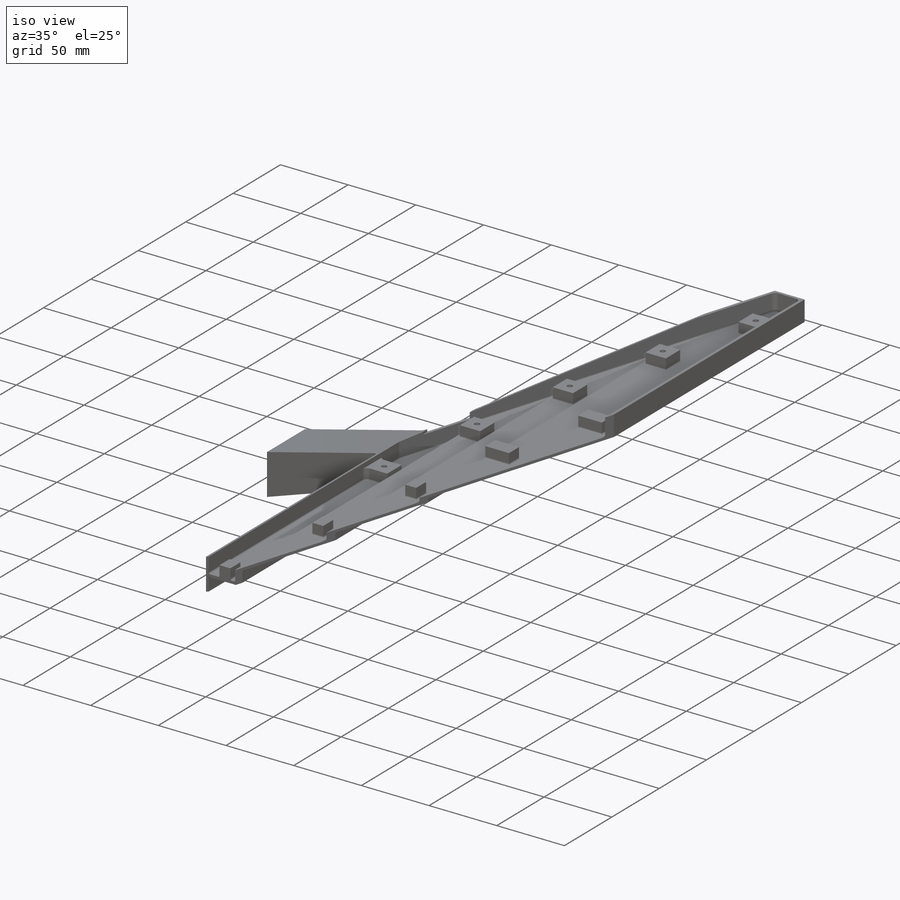
[diagram: iso view]
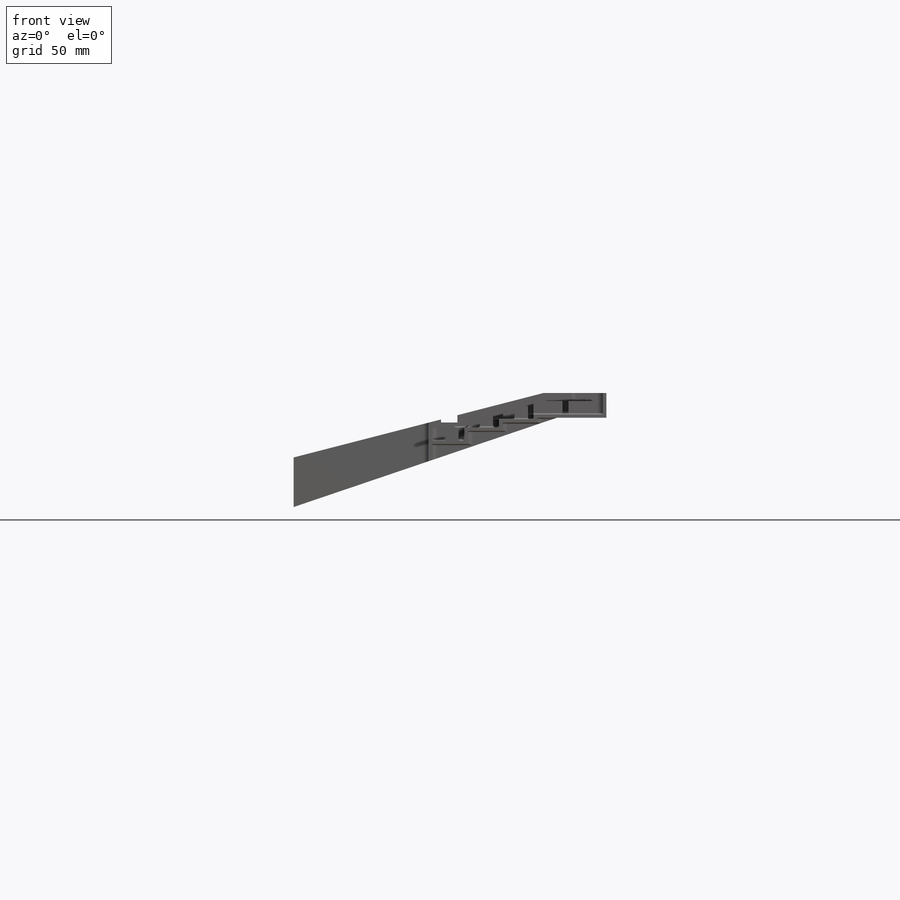
[diagram: front view]
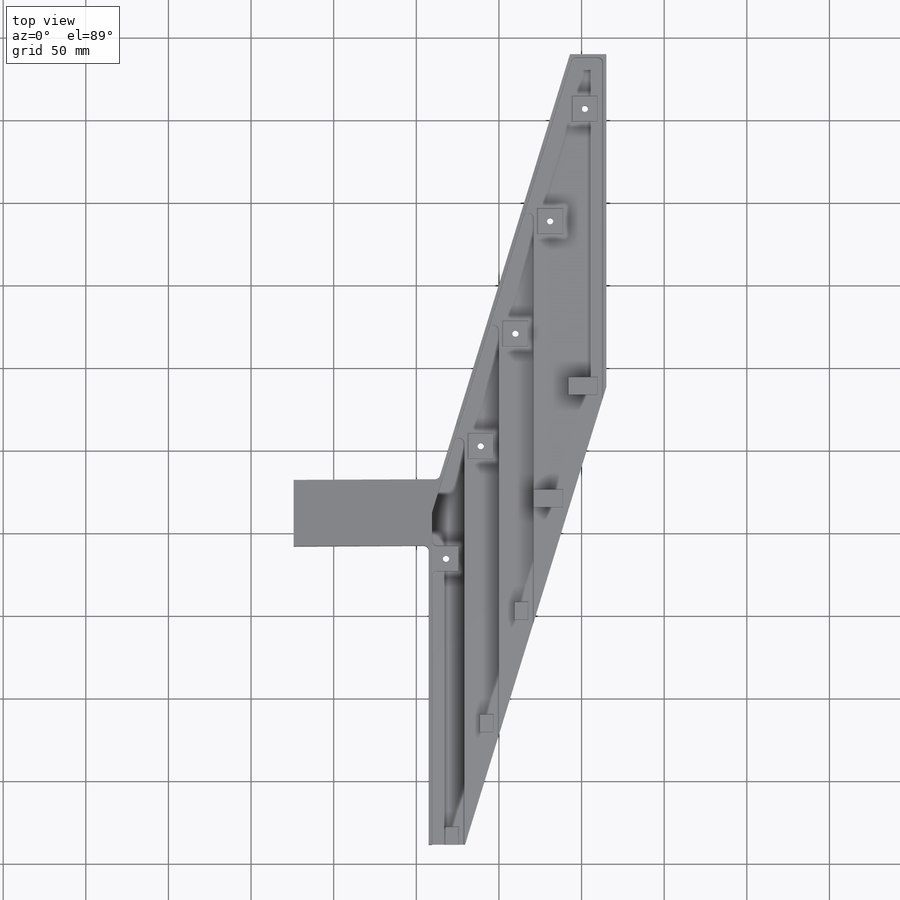
[diagram: top view]
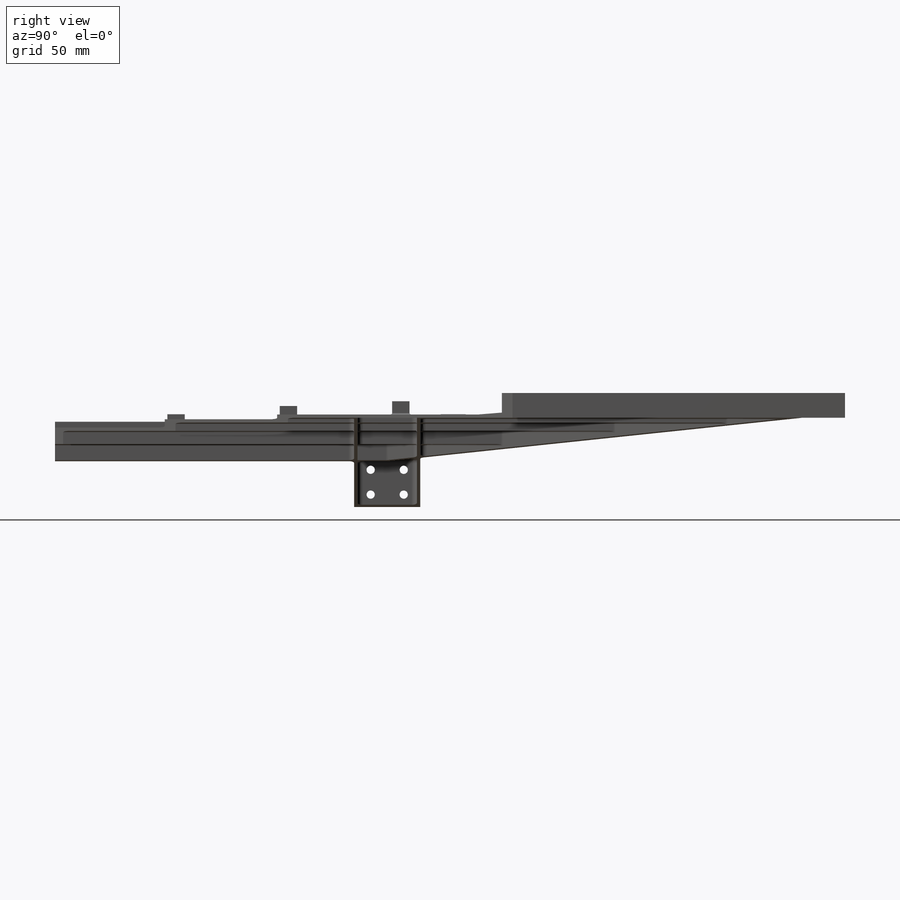
[diagram: right view]
SOLIDWORKS PART (.sldprt)
format: sldprt  version: not decoded by parser v0  size: 1,309,696 bytes
history: native  units: mm
features: sketch x28, extrude x11, fillet x9, cut_extrude x6, thread x5, hole x2, material x1 (+11 scaffold rows collapsed)
feature tree (73):
  scaffold x11  (default folders/planes/origin — collapsed)
  material  "6061-T6 (SS)"
  sketch  "Sketch36"  dims[D1=374.0mm D2=68.0mm]
  sketch  "Sketch2"  dims[c1.D1=417.7mm c1.D5=432.7mm c1.D8=117.602mm c1.D14=117.602mm c1.D12=430.4mm c1.D2=114.3mm c1.D4=20.6mm c2.D5=3.175mm c2.D6=10.3mm c2.D4=95.0mm c3.D6=110.0mm c3.D4=95.0mm c3.D7=62.1mm c3.D9=42.0mm c3.D10=21.0mm c3.D11=2.0mm c3.D12=2.0mm c4.D11=2.0mm c4.D13=2.0mm c4.D14=12.0mm c5.D11=15.0mm c5.D13=116.3mm c5.D14=13.8mm c5.D15=23.5mm c5.D3=2.0mm c5.D1=478.0mm c5.D5=2.0mm c5.D6=1.0mm c5.D7=5.0mm]
  sketch  "Sketch3"  dims[D1=22.0mm D2=21.0mm D3=68.0mm D4=478.0mm]
  cut_extrude  "Cut-Extrude2"  [1 undecoded]
  sketch  "Sketch11"  dims[D1=190.0mm D5=2.0mm D6=1.0mm D7=5.0mm]
  sketch  "Sketch12"  dims[D1=40.0mm D2=124.0mm D3=277.0mm D5=2.0mm D6=1.0mm D7=5.0mm]
  sketch  "Sketch13"  dims[D5=2.0mm D6=1.0mm D7=5.0mm]
  sketch  "Sketch4"
  cut_extrude  "Cut-Extrude3"  [1 undecoded]
  sketch  "Sketch14"  dims[c1.D1=13.0mm c1.D2=4.0mm c1.D3=38.0mm c2.D2=83.0mm]
  cut_extrude  "Cut-Extrude4"  [1 undecoded]
  sketch  "Sketch15"  dims[c1.D1=29.0mm c1.D2=30.0mm c2.D1=30.0mm]
  cut_extrude  "Cut-Extrude5"  [1 undecoded]
  sketch  "Sketch16"
  extrude  "Boss-Extrude1"  Depth=2mm
  sketch  "Sketch17"  dims[D1=3.5mm D2=15.0mm D3=23.5mm]
  extrude  "Boss-Extrude2"  Depth=8mm
  sketch  "knob locator"  dims[D1=68.0mm D2=21.0mm D3=170.0mm]
  sketch  "Sketch19"  dims[D1=15.0mm]
  extrude  "Boss-Extrude3"  [1 undecoded]
  sketch  "Sketch20"
  extrude  "Boss-Extrude4"  Depth=8mm
  sketch  "Sketch21"
  extrude  "Boss-Extrude5"  Depth=8mm
  sketch  "Sketch22"
  extrude  "Boss-Extrude6"  Depth=8mm
  sketch  "Sketch23"
  cut_extrude  "Cut-Extrude6"  [1 undecoded]
  sketch  "Sketch25"  dims[D1=4.0mm]
  extrude  "Boss-Extrude7"  [1 undecoded]
  sketch  "Sketch29"  dims[D1=10.5mm D2=8.0mm D3=170.0mm]
  extrude  "Boss-Extrude8"  Depth=8mm
  sketch  "Sketch30"  dims[D1=8.0mm]
  extrude  "Boss-Extrude9"  Depth=8mm
  sketch  "Sketch31"
  extrude  "Boss-Extrude10"  Depth=8mm
  sketch  "Sketch32"
  extrude  "Boss-Extrude11"  Depth=8mm
  sketch  "Sketch26"  dims[c1.D1=25.0mm c1.D2=30.0mm c2.D1=25.0mm]
  hole  "#10 Clearance Hole1"  Diameter=4.9784mm Depth=189.198163mm
  sketch  "Sketch28"
  sketch  "Sketch27"  dims[hole-wizard template sketch: 60 standard entries collapsed; hole parameters kept: c18.Thru Hole Depth=~189.198163mm]
  fillet  "Fillet1"  Radius=3.175mm
  fillet  "Fillet2"  Radius=3.175mm
  fillet  "Fillet7"  Radius=3.175mm
  fillet  "Fillet3"  Radius=3.175mm
  fillet  "Fillet5"  Radius=1mm
  fillet  "Fillet6"  Radius=1mm
  hole  "#10-24 Tapped Hole1"  Diameter=3.7973mm Depth=64.005411mm
  sketch  "Sketch35"
  sketch  "Sketch34"  dims[hole-wizard template sketch: 60 standard entries collapsed; hole parameters kept: c18.Thru Tap Drill Depth=~64.005411mm]
  thread  "Hole Thread3"  Diameter=4.826mm  [1 undecoded]
  thread  "Hole Thread4"  Diameter=4.826mm  [1 undecoded]
  thread  "Hole Thread5"  Diameter=4.826mm  [1 undecoded]
  thread  "Hole Thread6"  Diameter=4.826mm  [1 undecoded]
  thread  "Hole Thread7"  Diameter=4.826mm  [1 undecoded]
  sketch  "Sketch37"  dims[D1=10.0mm D2=1.94mm]
  cut_extrude  "Cut-Extrude7"  Depth=3mm
  fillet  "Fillet9"  Radius=0.39624mm
  fillet  "Fillet8"  Radius=0.39624mm
  fillet  "Fillet10"  Radius=3.175mm
decode coverage: 44 of 61 modeling features carry decoded parameters
note: ~ marks probable driven/reference dimensions
note: 12 parameter values undecoded
summary: no parameter record found for 7 features
note: suppression state not decoded; provenance and decode notes live in map.json
